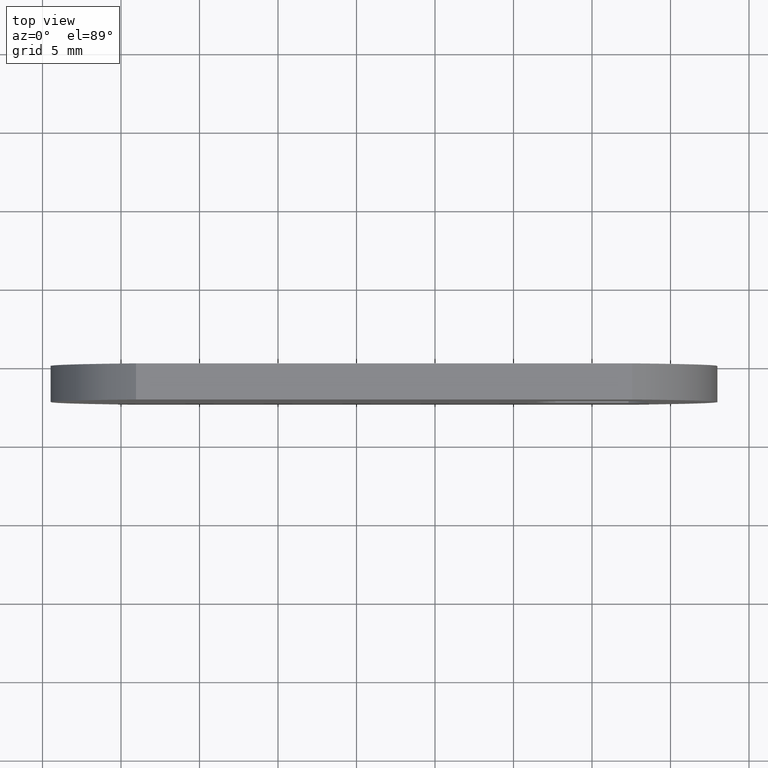
[diagram: clean part render]
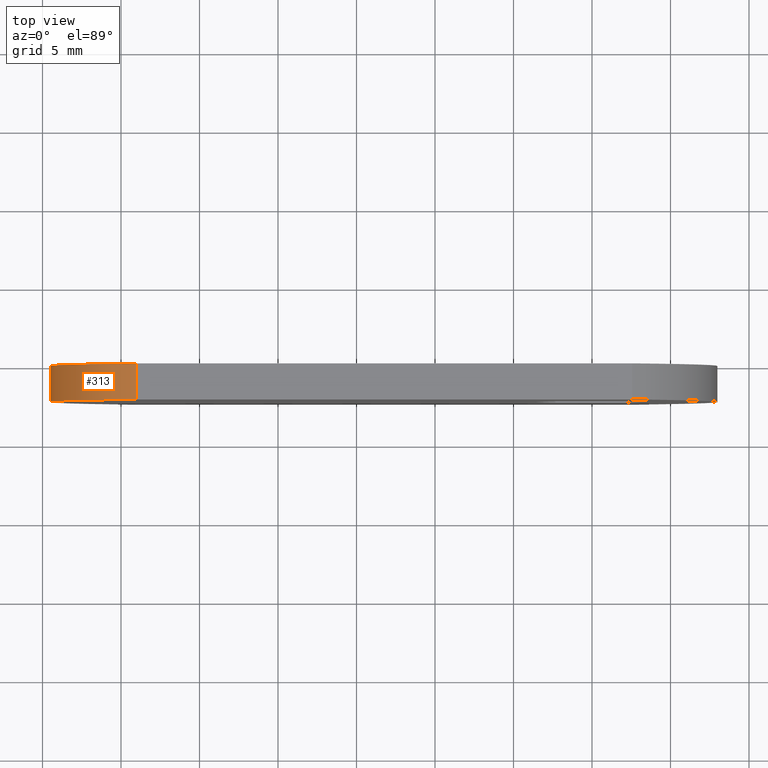
[diagram: same view with one face highlighted and labeled with its STEP entity id]
A machine part, top view. The second image highlights one B-rep face of the part: STEP entity #313.
In plain terms, the highlighted face is a freeform B-spline surface patch.
Its self-contained STEP definition (entity closure, byte-faithful):
#49=CARTESIAN_POINT('',(-29.045268253204700,0.0,9.500000000000000));
#50=VERTEX_POINT('',#49);
#75=CARTESIAN_POINT('',(-29.045268253204700,0.0,-9.500000000000000));
#76=VERTEX_POINT('',#75);
#82=CARTESIAN_POINT('',(-29.045268253204700,0.0,9.500000000000005));
#83=CARTESIAN_POINT('',(-34.500000000000000,0.0,6.316005180499818));
#84=CARTESIAN_POINT('',(-34.500000000000000,0.0,0.0));
#85=CARTESIAN_POINT('',(-34.500000000000000,0.0,-6.316005180499817));
#86=CARTESIAN_POINT('',(-29.045268253204700,0.0,-9.500000000000004));
#94=(BOUNDED_CURVE()B_SPLINE_CURVE(2,(#82,#83,#84,#85,#86),.UNSPECIFIED.,.F.,.U.)B_SPLINE_CURVE_WITH_KNOTS((3,2,3),(0.0,0.500000000000000,1.0),.UNSPECIFIED.)CURVE()GEOMETRIC_REPRESENTATION_ITEM()RATIONAL_B_SPLINE_CURVE((1.0,0.867212573636326,1.0,0.867212573636326,1.0))REPRESENTATION_ITEM(''));
#95=EDGE_CURVE('',#50,#76,#94,.T.);
#155=CARTESIAN_POINT('',(-29.045268253204700,-2.300000000000080,9.500000000000000));
#156=VERTEX_POINT('',#155);
#164=CARTESIAN_POINT('',(-29.045268253204700,-2.300000000000080,-9.500000000000000));
#165=VERTEX_POINT('',#164);
#166=CARTESIAN_POINT('',(-29.045268253204700,-2.300000000000080,9.500000000000005));
#167=CARTESIAN_POINT('',(-34.500000000000000,-2.300000000000080,6.316005180499818));
#168=CARTESIAN_POINT('',(-34.500000000000000,-2.300000000000080,0.0));
#169=CARTESIAN_POINT('',(-34.500000000000000,-2.300000000000080,-6.316005180499817));
#170=CARTESIAN_POINT('',(-29.045268253204700,-2.300000000000080,-9.500000000000004));
#178=(BOUNDED_CURVE()B_SPLINE_CURVE(2,(#166,#167,#168,#169,#170),.UNSPECIFIED.,.F.,.U.)B_SPLINE_CURVE_WITH_KNOTS((3,2,3),(0.0,0.500000000000000,1.0),.UNSPECIFIED.)CURVE()GEOMETRIC_REPRESENTATION_ITEM()RATIONAL_B_SPLINE_CURVE((1.0,0.867212573636326,1.0,0.867212573636326,1.0))REPRESENTATION_ITEM(''));
#179=EDGE_CURVE('',#156,#165,#178,.T.);
#285=CARTESIAN_POINT('',(-28.794687019345680,-2.357500000000082,9.641902787685234));
#286=CARTESIAN_POINT('',(-28.794687019345680,0.058937500000002,9.641902787685234));
#287=CARTESIAN_POINT('',(-46.928468768441903,-2.357500000000083,-0.315955215323884));
#288=CARTESIAN_POINT('',(-46.928468768441903,0.058937500000002,-0.315955215323884));
#289=CARTESIAN_POINT('',(-28.532748274597470,-2.357500000000082,-9.781178088785431));
#290=CARTESIAN_POINT('',(-28.532748274597470,0.058937500000002,-9.781178088785431));
#298=(BOUNDED_SURFACE()B_SPLINE_SURFACE(1,2,((#285,#287,#289),(#286,#288,#290)),.UNSPECIFIED.,.F.,.F.,.U.)B_SPLINE_SURFACE_WITH_KNOTS((2,2),(3,3),(0.0,2.416437500000084),(0.0,26.437867237212661),.UNSPECIFIED.)GEOMETRIC_REPRESENTATION_ITEM()RATIONAL_B_SPLINE_SURFACE(((1.0,0.469471562785891,1.0),(1.0,0.469471562785891,1.0)))REPRESENTATION_ITEM('')SURFACE());
#299=ORIENTED_EDGE('',*,*,#95,.T.);
#300=CARTESIAN_POINT('',(-29.045268253204700,-2.300000000000080,-9.500000000000000));
#301=CARTESIAN_POINT('',(-29.045268253204700,0.0,-9.500000000000000));
#302=QUASI_UNIFORM_CURVE('',1,(#300,#301),.UNSPECIFIED.,.F.,.U.);
#303=EDGE_CURVE('',#165,#76,#302,.T.);
#304=ORIENTED_EDGE('',*,*,#303,.F.);
#305=ORIENTED_EDGE('',*,*,#179,.F.);
#306=CARTESIAN_POINT('',(-29.045268253204700,-2.300000000000080,9.500000000000000));
#307=CARTESIAN_POINT('',(-29.045268253204700,0.0,9.500000000000000));
#308=QUASI_UNIFORM_CURVE('',1,(#306,#307),.UNSPECIFIED.,.F.,.U.);
#309=EDGE_CURVE('',#156,#50,#308,.T.);
#310=ORIENTED_EDGE('',*,*,#309,.T.);
#311=EDGE_LOOP('',(#299,#304,#305,#310));
#312=FACE_OUTER_BOUND('',#311,.T.);
#313=ADVANCED_FACE('',(#312),#298,.T.);